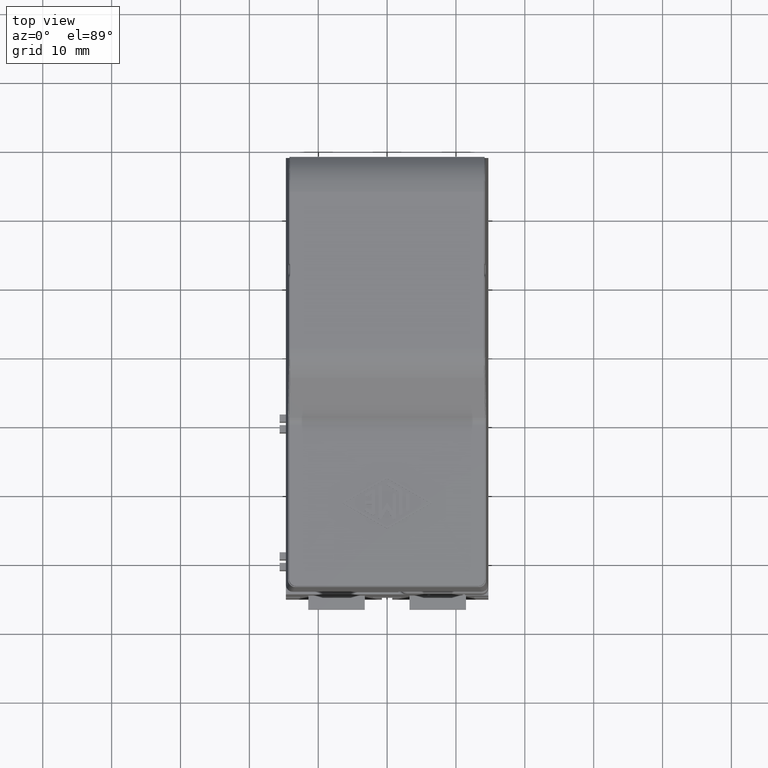
[diagram: clean part render]
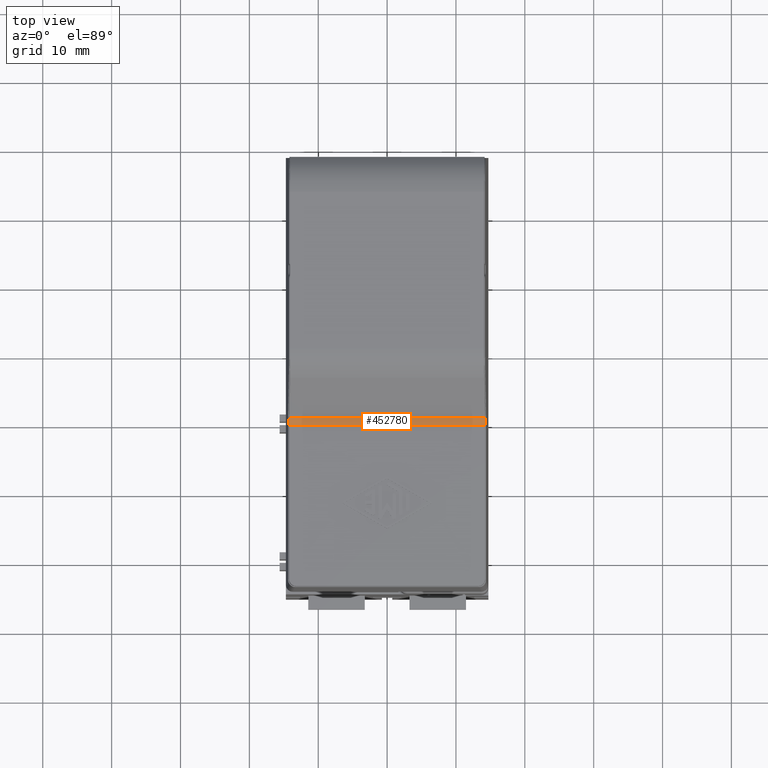
[diagram: same view with one face highlighted and labeled with its STEP entity id]
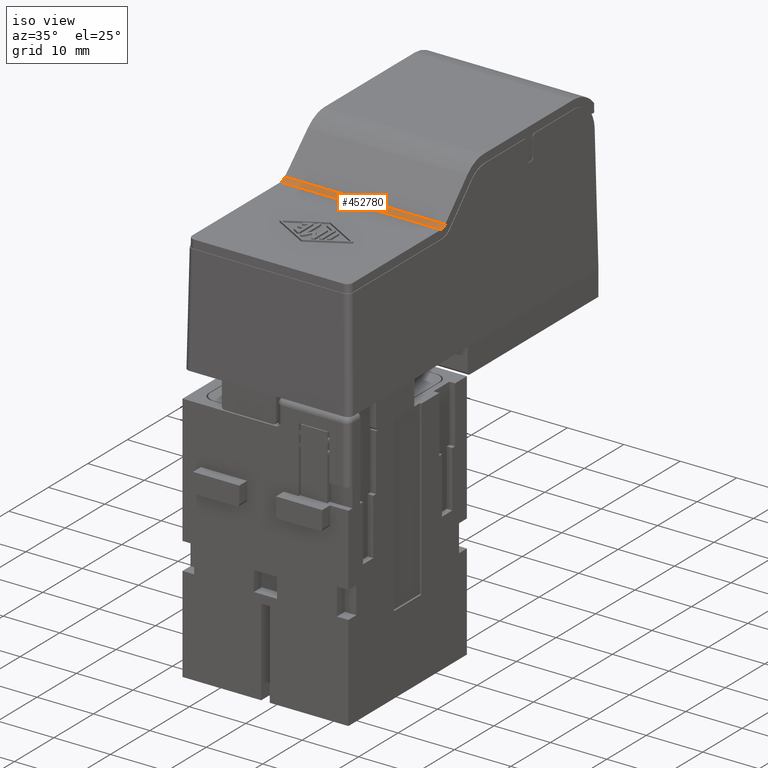
[diagram: same view with one face highlighted and labeled with its STEP entity id]
A machine part, top view. The second image highlights one B-rep face of the part: STEP entity #452780.
A second angle (iso view) of the same face is appended — the face is thin or edge-on in the first view.
In plain terms, the highlighted cylindrical surface (edge-blend (fillet) strip) has radius 1.5 mm, axis along (-1, -0, -0).
Its self-contained STEP definition (entity closure, byte-faithful):
#320240=CARTESIAN_POINT('',(100.476354596312,49.157359312889,
10.0000000000021));
#320250=VERTEX_POINT('',#320240);
#320280=CARTESIAN_POINT('',(100.502537193705,49.1573593128888,
8.50000000000215));
#320290=DIRECTION('',(0.99984769515639,-7.686219013481E-16,
0.0174524064373428));
#320300=DIRECTION('',(-0.0174524064373428,-1.73404571045806E-14,
0.99984769515639));
#320310=AXIS2_PLACEMENT_3D('',#320280,#320290,#320300);
#320320=ELLIPSE('',#320310,1.50022849206586,1.5);
#320330=CARTESIAN_POINT('',(100.48402330154,50.2180194846688,
9.56066017178179));
#320340=VERTEX_POINT('',#320330);
#320350=EDGE_CURVE('',#320340,#320250,#320320,.T.);
#430990=CARTESIAN_POINT('',(128.943211403719,49.157359312889,
10.000000000003));
#431000=VERTEX_POINT('',#430990);
#431030=CARTESIAN_POINT('',(111.28187741284,49.157359312889,
10.0000000000025));
#431040=DIRECTION('',(1.,-3.6139734768051E-16,2.96664172315122E-14));
#431050=VECTOR('',#431040,1.);
#431060=LINE('',#431030,#431050);
#431070=EDGE_CURVE('',#320250,#431000,#431060,.T.);
#452540=CARTESIAN_POINT('',(111.28187741284,49.1573593128888,
8.50000000000247));
#452550=DIRECTION('',(1.,-3.6139734768051E-16,2.96664172315122E-14));
#452560=DIRECTION('',(3.61397347684672E-16,1.,-1.40301257963648E-13));
#452570=AXIS2_PLACEMENT_3D('',#452540,#452550,#452560);
#452580=CYLINDRICAL_SURFACE('',#452570,1.5);
#452590=CARTESIAN_POINT('',(128.917028806326,49.1573593128887,
8.50000000000299));
#452600=DIRECTION('',(0.999847695156391,-5.85215804957901E-17,
-0.0174524064372835));
#452610=DIRECTION('',(0.0174524064372835,-1.73548949477612E-14,
0.999847695156391));
#452620=AXIS2_PLACEMENT_3D('',#452590,#452600,#452610);
#452630=ELLIPSE('',#452620,1.50022849206586,1.5);
#452640=CARTESIAN_POINT('',(128.935542698491,50.2180194846687,
9.56066017178263));
#452650=VERTEX_POINT('',#452640);
#452660=EDGE_CURVE('',#452650,#431000,#452630,.T.);
#452670=ORIENTED_EDGE('',*,*,#452660,.T.);
#452680=CARTESIAN_POINT('',(111.28187741284,50.2180194846688,
9.56066017178211));
#452690=DIRECTION('',(1.,-3.6139734768051E-16,2.96664172315122E-14));
#452700=VECTOR('',#452690,1.);
#452710=LINE('',#452680,#452700);
#452720=EDGE_CURVE('',#320340,#452650,#452710,.T.);
#452730=ORIENTED_EDGE('',*,*,#452720,.T.);
#452740=ORIENTED_EDGE('',*,*,#320350,.F.);
#452750=ORIENTED_EDGE('',*,*,#431070,.F.);
#452760=EDGE_LOOP('',(#452750,#452740,#452730,#452670));
#452770=FACE_OUTER_BOUND('',#452760,.T.);
#452780=ADVANCED_FACE('',(#452770),#452580,.F.);